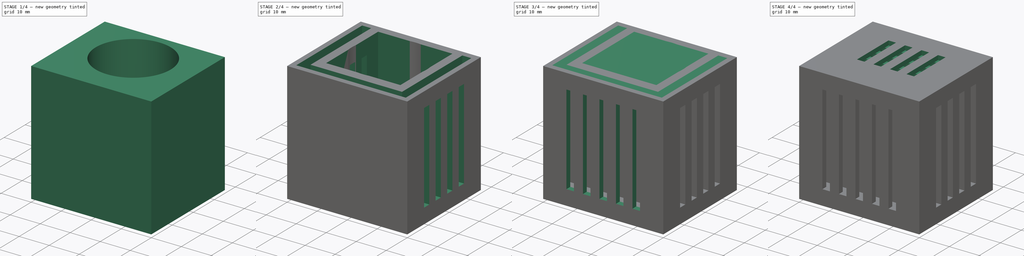
[diagram: build sequence overview — one tinted view per stage of 4, left to right]
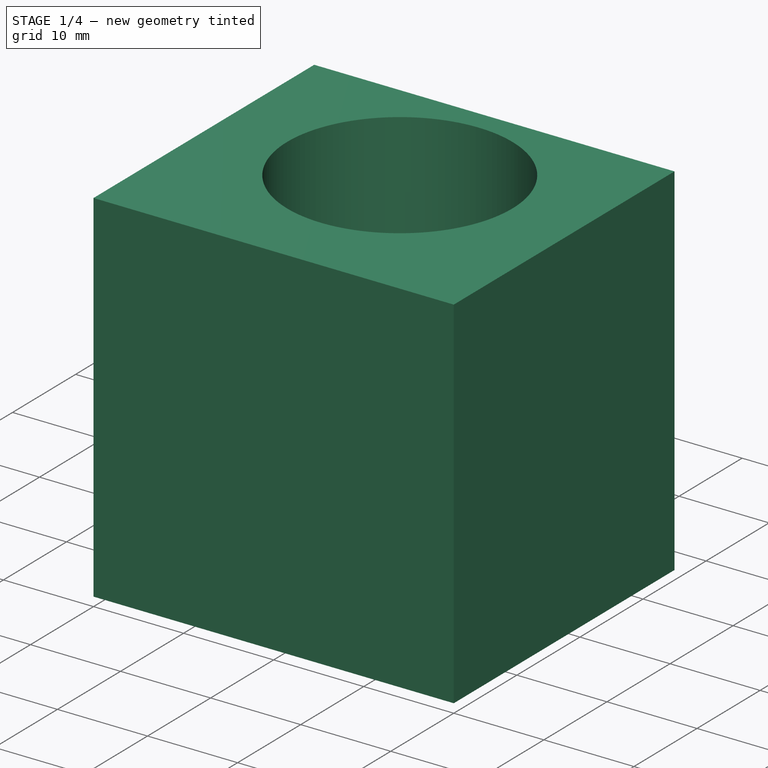
[diagram: stage 1 of 4 — iso view after this stage's code; geometry added in this stage tinted green]
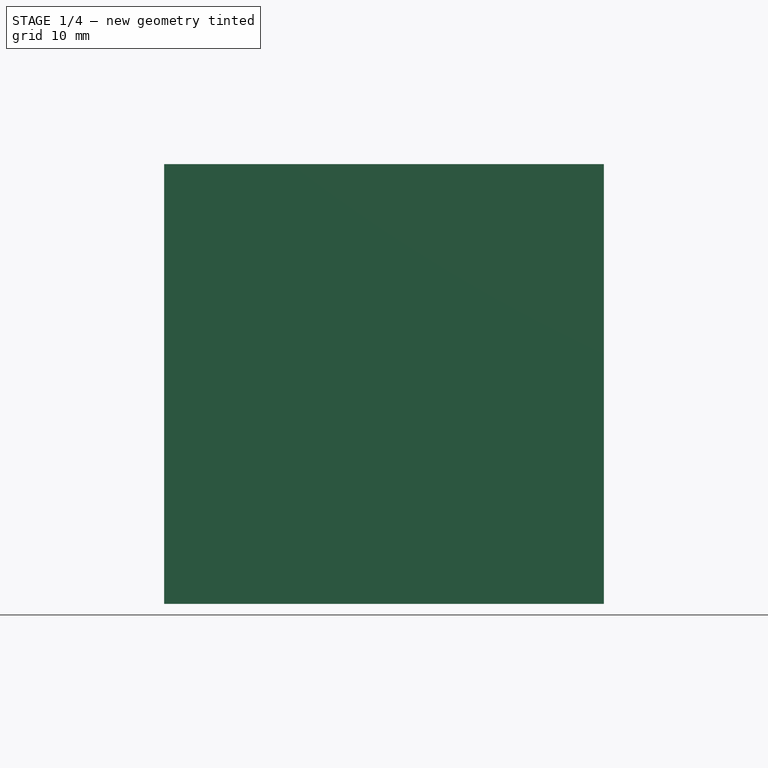
[diagram: stage 1 of 4 — front view after this stage's code; geometry added in this stage tinted green]
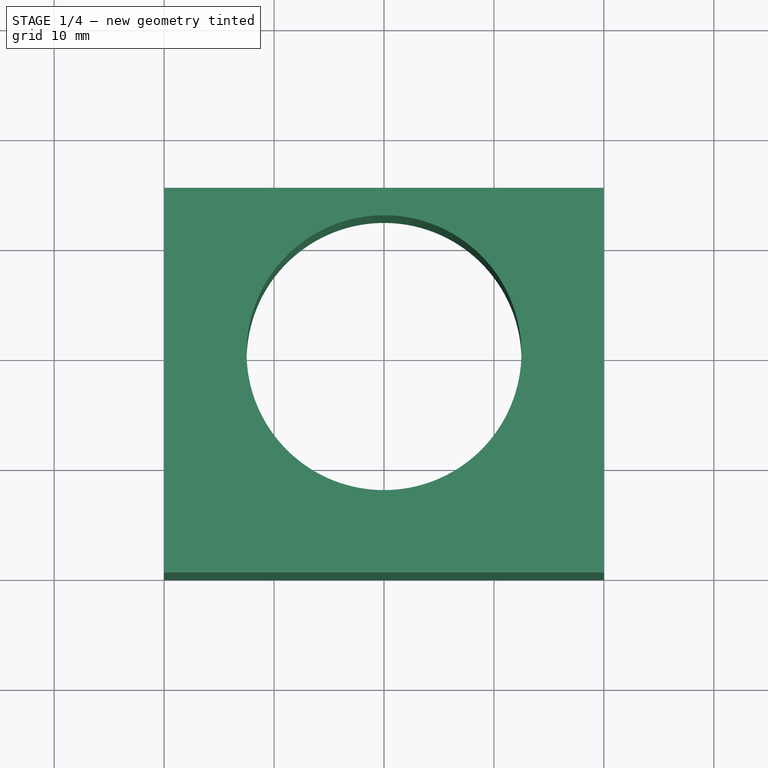
[diagram: stage 1 of 4 — top view after this stage's code; geometry added in this stage tinted green]
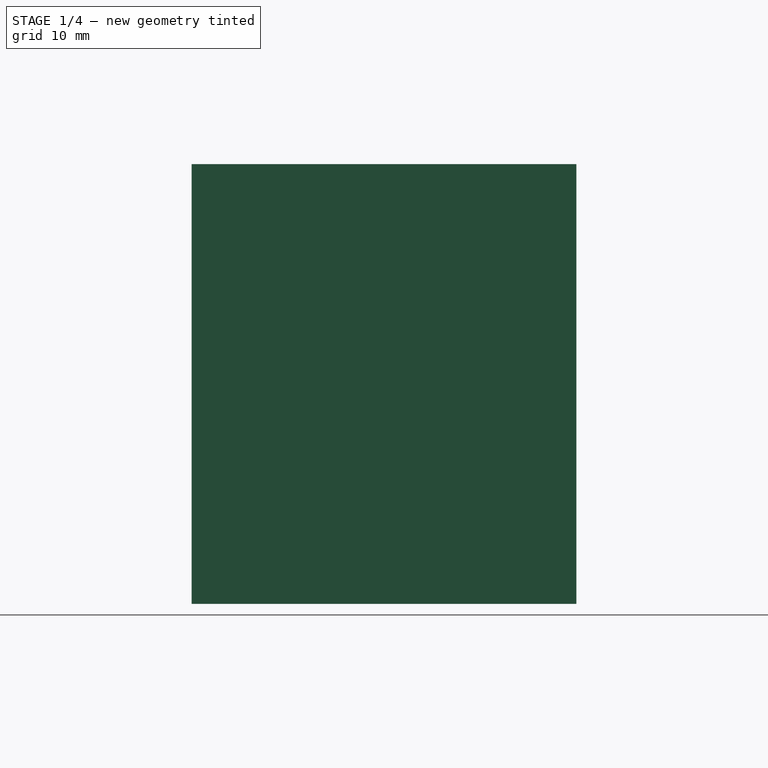
[diagram: stage 1 of 4 — right view after this stage's code; geometry added in this stage tinted green]
FCSTD DOCUMENT  (FreeCAD 0.19R)
Label: FishStrainer
License: All rights reserved
LicenseURL: http://en.wikipedia.org/wiki/All_rights_reserved
objects: Sketcher::SketchObject×10, PartDesign::Pocket×8, PartDesign::Pad×2, PartDesign::Body×1
note: 31 computed .brp shape members not serialized (recipe doc carries the construction recipe); baked Part::Feature solids carry a one-line shape summary decoded from their .brp

FEATURE [Sketcher::SketchObject] Sketch
  FullyConstrained = true
  MapMode = 5
  Support = -> [XY_Plane]
  sketch-geometry (4):
    g0: LineSegment StartX=-20 StartY=15 StartZ=0 EndX=20 EndY=15 EndZ=0
    g1: LineSegment StartX=20 StartY=15 StartZ=0 EndX=20 EndY=-20 EndZ=0
    g2: LineSegment StartX=20 StartY=-20 StartZ=0 EndX=-20 EndY=-20 EndZ=0
    g3: LineSegment StartX=-20 StartY=-20 StartZ=0 EndX=-20 EndY=15 EndZ=0
  constraints (11):
    c: Coincident(g0,g1)
    c: Coincident(g1,g2)
    c: Coincident(g2,g3)
    c: Coincident(g3,g0)
    c: Horizontal(g2)
    c: Vertical(g1)
    c: Vertical(g3)
    c: Distance(g0) = 40
    c: Symmetric(g0,g0,g-2)
    c: DistanceY(g0) = 15
    c: Distance(g1) = 35
FEATURE [PartDesign::Pad] Pad
  Direction = (1,1,1)
  Length = 40
  Length2 = 100
  Profile = -> Sketch
  Type = 0
FEATURE [Sketcher::SketchObject] Sketch001
  FullyConstrained = true
  MapMode = 5
  Placement = pos=(0,0,0) rot=(1,0,0;3.14159rad)
  Support = -> [Pad]
  sketch-geometry (1):
    g0: Circle CenterX=0 CenterY=0 CenterZ=0 NormalX=0 NormalY=0 NormalZ=1 AngleXU=0 Radius=12.5
  constraints (2):
    c: Coincident(g0,g-1)
    c: Diameter(g0) = 25
FEATURE [PartDesign::Pocket] Pocket
  BaseFeature = -> Pad
  Length = 5
  Length2 = 100
  Profile = -> Sketch001
  Type = 1
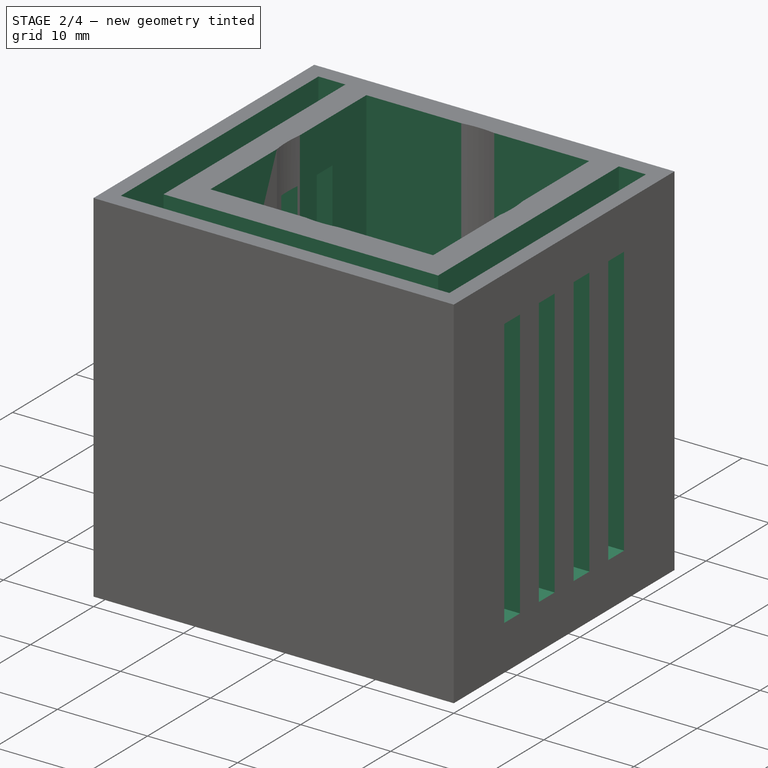
[diagram: stage 2 of 4 — iso view after this stage's code; geometry added in this stage tinted green]
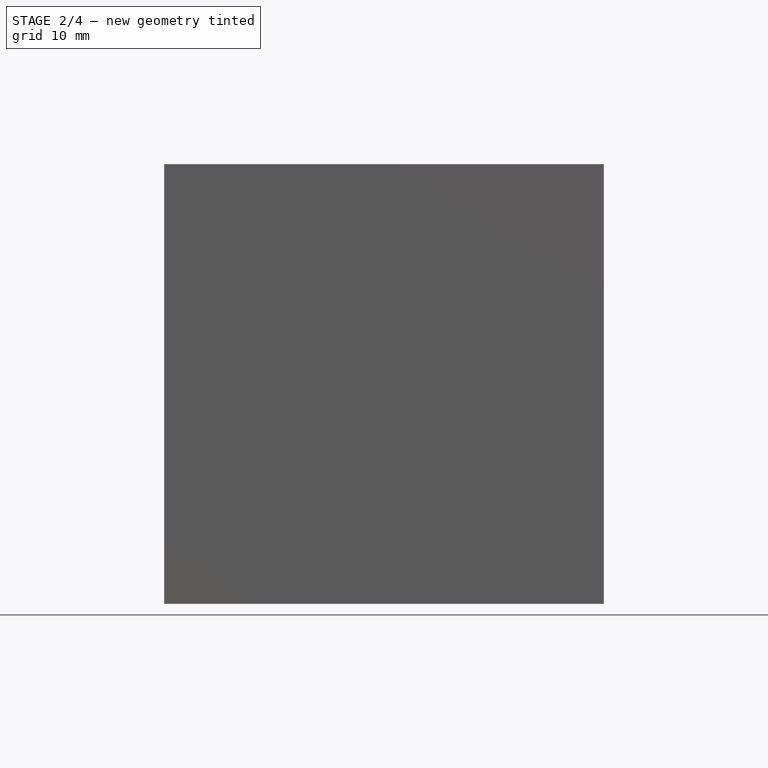
[diagram: stage 2 of 4 — front view after this stage's code; geometry added in this stage tinted green]
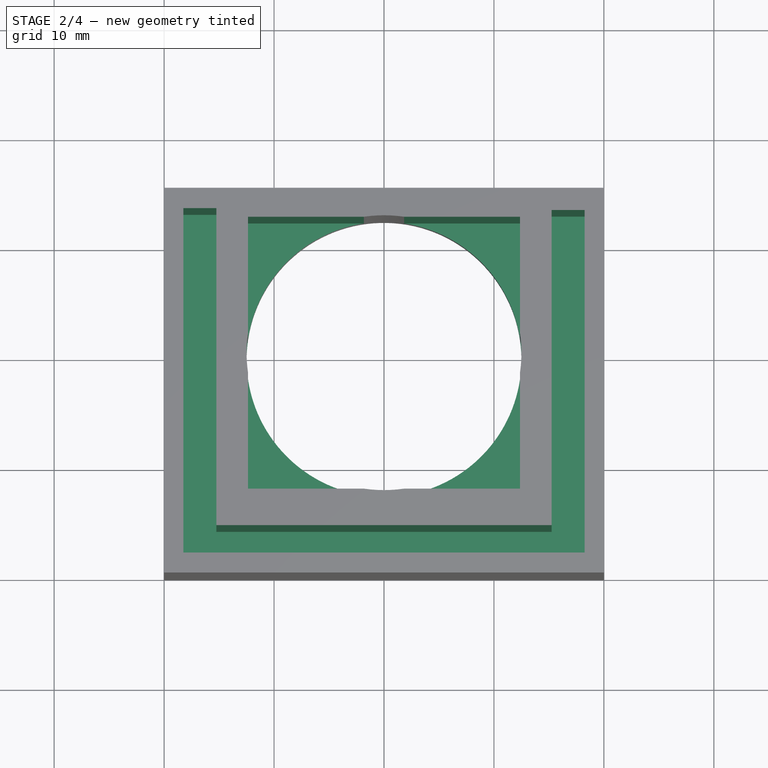
[diagram: stage 2 of 4 — top view after this stage's code; geometry added in this stage tinted green]
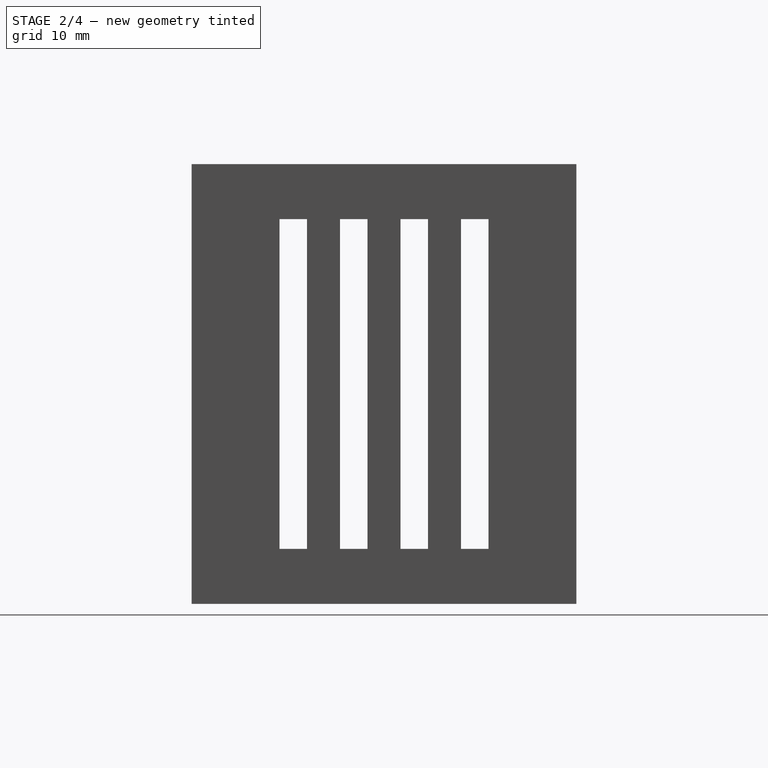
[diagram: stage 2 of 4 — right view after this stage's code; geometry added in this stage tinted green]
FEATURE [Sketcher::SketchObject] Sketch002
  FullyConstrained = false
  MapMode = 5
  Placement = pos=(0,0,40) rot=(0,0,1;0rad)
  Support = -> [Pocket]
  sketch-geometry (4):
    g0: LineSegment StartX=-12.3659 StartY=12.3659 StartZ=0 EndX=12.3659 EndY=12.3659 EndZ=0
    g1: LineSegment StartX=12.3659 StartY=12.3659 StartZ=0 EndX=12.3659 EndY=-12.3659 EndZ=0
    g2: LineSegment StartX=12.3659 StartY=-12.3659 StartZ=0 EndX=-12.3659 EndY=-12.3659 EndZ=0
    g3: LineSegment StartX=-12.3659 StartY=-12.3659 StartZ=0 EndX=-12.3659 EndY=12.3659 EndZ=0
  constraints (10):
    c: Coincident(g0,g1)
    c: Coincident(g1,g2)
    c: Coincident(g2,g3)
    c: Coincident(g3,g0)
    c: Horizontal(g0)
    c: Horizontal(g2)
    c: Vertical(g1)
    c: Vertical(g3)
    c: Equal(g0,g1)
    c: Symmetric(g0,g2,g-1)
FEATURE [Sketcher::SketchObject] Sketch003
  FullyConstrained = false
  MapMode = 5
  Placement = pos=(0,0,40) rot=(0,0,1;0rad)
  sketch-geometry (8):
    g0: LineSegment StartX=-18.2414 StartY=13.1494 StartZ=0 EndX=-15.2414 EndY=13.1494 EndZ=0
    g1: LineSegment StartX=-15.2414 StartY=13.1494 StartZ=0 EndX=-15.2414 EndY=-15.6886 EndZ=0
    g2: LineSegment StartX=-15.2414 StartY=-15.6886 StartZ=0 EndX=15.2414 EndY=-15.6886 EndZ=0
    g3: LineSegment StartX=15.2414 StartY=-15.6886 StartZ=0 EndX=15.2414 EndY=12.9816 EndZ=0
    g4: LineSegment StartX=15.2414 StartY=12.9816 StartZ=0 EndX=18.2414 EndY=12.9816 EndZ=0
    g5: LineSegment StartX=18.2414 StartY=12.9816 StartZ=0 EndX=18.2414 EndY=-18.1805 EndZ=0
    g6: LineSegment StartX=18.2414 StartY=-18.1805 StartZ=0 EndX=-18.2414 EndY=-18.1805 EndZ=0
    g7: LineSegment StartX=-18.2414 StartY=-18.1805 StartZ=0 EndX=-18.2414 EndY=13.1494 EndZ=0
  constraints (18):
    c: Coincident(g0,g1)
    c: Vertical(g1)
    c: Coincident(g1,g2)
    c: Horizontal(g2)
    c: Coincident(g2,g3)
    c: Vertical(g3)
    c: Coincident(g3,g4)
    c: Coincident(g4,g5)
    c: Vertical(g5)
    c: Coincident(g5,g6)
    c: Coincident(g6,g7)
    c: Coincident(g7,g0)
    c: Vertical(g7)
    c: Horizontal(g0)
    c: Horizontal(g4)
    c: Distance(g0) = 3
    c: Distance(g4) = 3
    c: Symmetric(g5,g6,g-2)
FEATURE [Sketcher::SketchObject] Sketch004
  FullyConstrained = false
  MapMode = 5
  Placement = pos=(20,0,0) rot=(0.57735,0.57735,0.57735;2.0944rad)
  sketch-geometry (17):
    g0: LineSegment StartX=-12 StartY=35 StartZ=0 EndX=-9.5 EndY=35 EndZ=0
    g1: LineSegment StartX=-9.5 StartY=35 StartZ=0 EndX=-9.5 EndY=5 EndZ=0
    g2: LineSegment StartX=-9.5 StartY=5 StartZ=0 EndX=-12 EndY=5 EndZ=0
    g3: LineSegment StartX=-12 StartY=5 StartZ=0 EndX=-12 EndY=35 EndZ=0
    g4: LineSegment StartX=-4 StartY=35 StartZ=0 EndX=-6.5 EndY=35 EndZ=0
    g5: LineSegment StartX=-6.5 StartY=35 StartZ=0 EndX=-6.5 EndY=5 EndZ=0
    g6: LineSegment StartX=-6.5 StartY=5 StartZ=0 EndX=-4 EndY=5 EndZ=0
    g7: LineSegment StartX=-4 StartY=5 StartZ=0 EndX=-4 EndY=35 EndZ=0
    g8: LineSegment StartX=-1 StartY=35 StartZ=0 EndX=1.5 EndY=35 EndZ=0
    g9: LineSegment StartX=1.5 StartY=35 StartZ=0 EndX=1.5 EndY=5 EndZ=0
    g10: LineSegment StartX=1.5 StartY=5 StartZ=0 EndX=-1 EndY=5 EndZ=0
    g11: LineSegment StartX=-1 StartY=5 StartZ=0 EndX=-1 EndY=35 EndZ=0
    g12: LineSegment StartX=-2.5 StartY=45.4487 StartZ=0 EndX=-2.5 EndY=-15.0992 EndZ=0
    g13: LineSegment StartX=4.5 StartY=35 StartZ=0 EndX=7 EndY=35 EndZ=0
    g14: LineSegment StartX=7 StartY=35 StartZ=0 EndX=7 EndY=5 EndZ=0
    g15: LineSegment StartX=7 StartY=5 StartZ=0 EndX=4.5 EndY=5 EndZ=0
    g16: LineSegment StartX=4.5 StartY=5 StartZ=0 EndX=4.5 EndY=35 EndZ=0
  constraints (46):
    c: Coincident(g0,g1)
    c: Coincident(g1,g2)
    c: Coincident(g2,g3)
    c: Coincident(g3,g0)
    c: Horizontal(g0)
    c: Horizontal(g2)
    c: Vertical(g1)
    c: Vertical(g3)
    c: Coincident(g4,g5)
    c: Coincident(g5,g6)
    c: Coincident(g6,g7)
    c: Coincident(g7,g4)
    c: Horizontal(g4)
    c: Horizontal(g6)
    c: Vertical(g5)
    c: Vertical(g7)
    c: Coincident(g8,g9)
    c: Coincident(g9,g10)
    c: Coincident(g10,g11)
    c: Coincident(g11,g8)
    c: Horizontal(g8)
    c: Horizontal(g10)
    c: Vertical(g9)
    c: Vertical(g11)
    c: Equal(g0,g4)
    c: Equal(g4,g8)
    c: Coincident(g13,g14)
    c: Coincident(g14,g15)
    c: Coincident(g15,g16)
    c: Coincident(g16,g13)
    c: Horizontal(g13)
    c: Horizontal(g15)
    c: Vertical(g14)
    c: Vertical(g16)
    c: Equal(g13,g8)
    c: Distance(g0) = 2.5
    c: Symmetric(g13,g0,g12)
    c: DistanceY(g0,g4) = 0
    c: DistanceY(g1,g5) = 0
    c: Equal(g5,g11)
    c: Equal(g11,g16)
    c: Symmetric(g8,g4,g12)
    c: Distance(g4,g0) = 3
    c: Distance(g4,g8) = 3
    c: DistanceY(g14) = 5
    c: DistanceY(g13) = 35
FEATURE [Sketcher::SketchObject] Sketch005
  FullyConstrained = true
  MapMode = 5
  Placement = pos=(0,-20,0) rot=(1,0,0;1.5708rad)
  sketch-geometry (20):
    g0: LineSegment StartX=-6.75 StartY=35 StartZ=0 EndX=-4.25 EndY=35 EndZ=0
    g1: LineSegment StartX=-4.25 StartY=35 StartZ=0 EndX=-4.25 EndY=5 EndZ=0
    g2: LineSegment StartX=-4.25 StartY=5 StartZ=0 EndX=-6.75 EndY=5 EndZ=0
    g3: LineSegment StartX=-6.75 StartY=5 StartZ=0 EndX=-6.75 EndY=35 EndZ=0
    g4: LineSegment StartX=-1.25 StartY=35 StartZ=0 EndX=1.25 EndY=35 EndZ=0
    g5: LineSegment StartX=1.25 StartY=35 StartZ=0 EndX=1.25 EndY=5 EndZ=0
    g6: LineSegment StartX=1.25 StartY=5 StartZ=0 EndX=-1.25 EndY=5 EndZ=0
    g7: LineSegment StartX=-1.25 StartY=5 StartZ=0 EndX=-1.25 EndY=35 EndZ=0
    g8: LineSegment StartX=4.25 StartY=35 StartZ=0 EndX=6.75 EndY=35 EndZ=0
    g9: LineSegment StartX=6.75 StartY=35 StartZ=0 EndX=6.75 EndY=5 EndZ=0
    g10: LineSegment StartX=6.75 StartY=5 StartZ=0 EndX=4.25 EndY=5 EndZ=0
    g11: LineSegment StartX=4.25 StartY=5 StartZ=0 EndX=4.25 EndY=35 EndZ=0
    g12: LineSegment StartX=9.75 StartY=35 StartZ=0 EndX=12.25 EndY=35 EndZ=0
    g13: LineSegment StartX=12.25 StartY=35 StartZ=0 EndX=12.25 EndY=5 EndZ=0
    g14: LineSegment StartX=12.25 StartY=5 StartZ=0 EndX=9.75 EndY=5 EndZ=0
    g15: LineSegment StartX=9.75 StartY=5 StartZ=0 EndX=9.75 EndY=35 EndZ=0
    g16: LineSegment StartX=-12.25 StartY=35 StartZ=0 EndX=-9.75 EndY=35 EndZ=0
    g17: LineSegment StartX=-9.75 StartY=35 StartZ=0 EndX=-9.75 EndY=5 EndZ=0
    g18: LineSegment StartX=-9.75 StartY=5 StartZ=0 EndX=-12.25 EndY=5 EndZ=0
    g19: LineSegment StartX=-12.25 StartY=5 StartZ=0 EndX=-12.25 EndY=35 EndZ=0
  constraints (57):
    c: Coincident(g0,g1)
    c: Coincident(g1,g2)
    c: Coincident(g2,g3)
    c: Coincident(g3,g0)
    c: Horizontal(g0)
    c: Horizontal(g2)
    c: Vertical(g1)
    c: Vertical(g3)
    c: Coincident(g4,g5)
    c: Coincident(g5,g6)
    c: Coincident(g6,g7)
    c: Coincident(g7,g4)
    c: Horizontal(g6)
    c: Vertical(g5)
    c: Vertical(g7)
    c: Coincident(g8,g9)
    c: Coincident(g9,g10)
    c: Coincident(g10,g11)
    c: Coincident(g11,g8)
    c: Horizontal(g8)
    c: Horizontal(g10)
    c: Vertical(g9)
    c: Vertical(g11)
    c: Symmetric(g0,g8,g-2)
    c: Symmetric(g4,g4,g-2)
    c: Equal(g0,g4)
    c: Equal(g4,g8)
    c: Distance(g2) = 2.5
    c: Distance(g4,g1) = 3
    c: DistanceY(g10,g5) = 0
    c: DistanceY(g1,g6) = 0
    c: Equal(g11,g7)
    c: Distance(g9) = 30
    c: DistanceY(g9) = 5
    c: Coincident(g12,g13)
    c: Coincident(g13,g14)
    c: Coincident(g14,g15)
    c: Coincident(g15,g12)
    c: Horizontal(g12)
    c: Horizontal(g14)
    c: Vertical(g13)
    c: Vertical(g15)
    c: Coincident(g16,g17)
    c: Coincident(g17,g18)
    c: Coincident(g18,g19)
    c: Coincident(g19,g16)
    c: Horizontal(g16)
    c: Horizontal(g18)
    c: Vertical(g17)
    c: Vertical(g19)
    c: DistanceY(g0,g16) = 0
    c: Equal(g15,g17)
    c: Equal(g17,g3)
    c: Equal(g12,g18)
    c: Equal(g18,g2)
    c: Symmetric(g12,g16,g-2)
    c: Distance(g16,g3) = 3
FEATURE [Sketcher::SketchObject] Sketch006
  FullyConstrained = false
  MapMode = 5
  Placement = pos=(0,0,40) rot=(0,0,1;0rad)
  sketch-geometry (4):
    g0: LineSegment StartX=-19.5635 StartY=14.3694 StartZ=0 EndX=19.5805 EndY=14.3694 EndZ=0
    g1: LineSegment StartX=19.5805 StartY=14.3694 StartZ=0 EndX=19.5805 EndY=-19.6162 EndZ=0
    g2: LineSegment StartX=19.5805 StartY=-19.6162 StartZ=0 EndX=-19.5635 EndY=-19.6162 EndZ=0
    g3: LineSegment StartX=-19.5635 StartY=-19.6162 StartZ=0 EndX=-19.5635 EndY=14.3694 EndZ=0
  constraints (8):
    c: Coincident(g0,g1)
    c: Coincident(g1,g2)
    c: Coincident(g2,g3)
    c: Coincident(g3,g0)
    c: Horizontal(g0)
    c: Horizontal(g2)
    c: Vertical(g1)
    c: Vertical(g3)
FEATURE [PartDesign::Pocket] Pocket001
  BaseFeature = -> Pocket
  Length = 35
  Length2 = 100
  Profile = -> Sketch002
  Type = 0
FEATURE [PartDesign::Pocket] Pocket002
  BaseFeature = -> Pocket001
  Length = 35
  Length2 = 100
  Profile = -> Sketch003
  Type = 0
FEATURE [PartDesign::Pocket] Pocket003
  BaseFeature = -> Pocket002
  Length = 5
  Length2 = 100
  Profile = -> Sketch004
  Type = 1
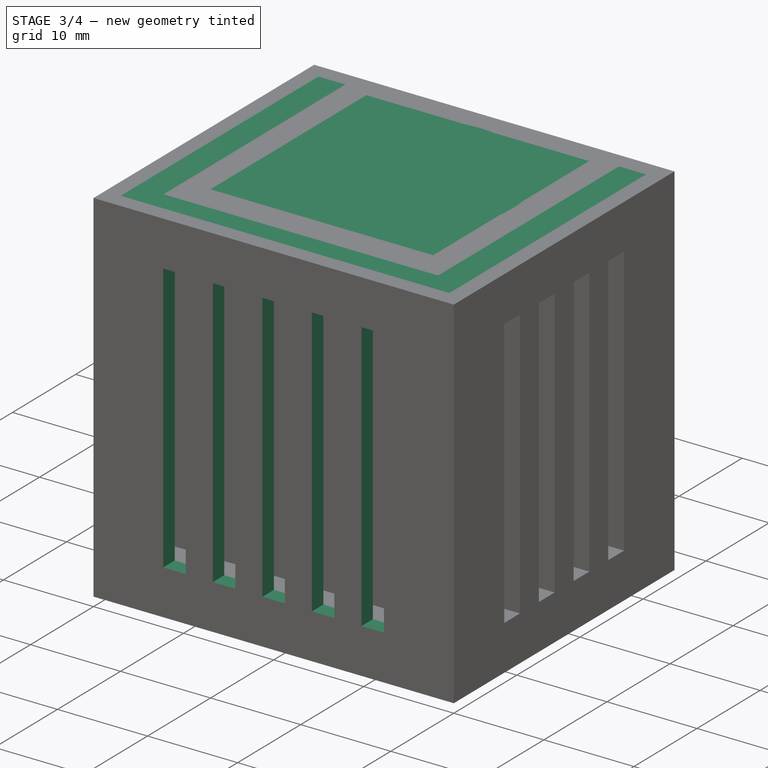
[diagram: stage 3 of 4 — iso view after this stage's code; geometry added in this stage tinted green]
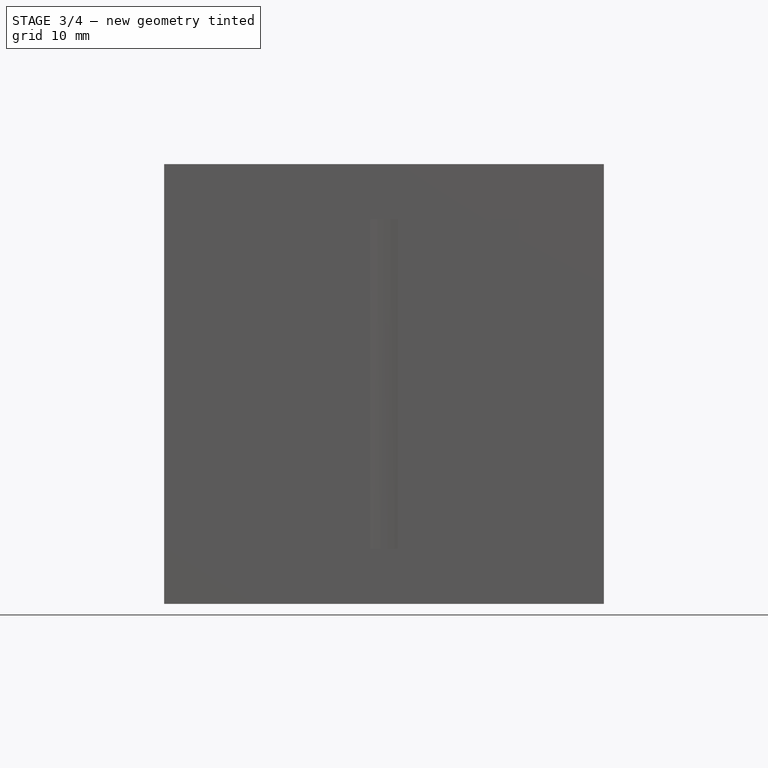
[diagram: stage 3 of 4 — front view after this stage's code; geometry added in this stage tinted green]
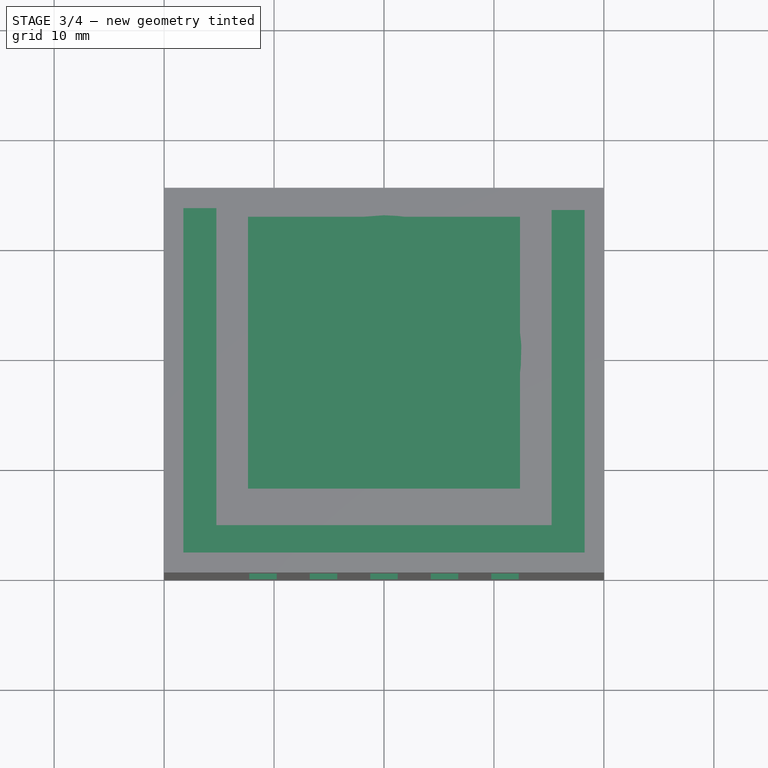
[diagram: stage 3 of 4 — top view after this stage's code; geometry added in this stage tinted green]
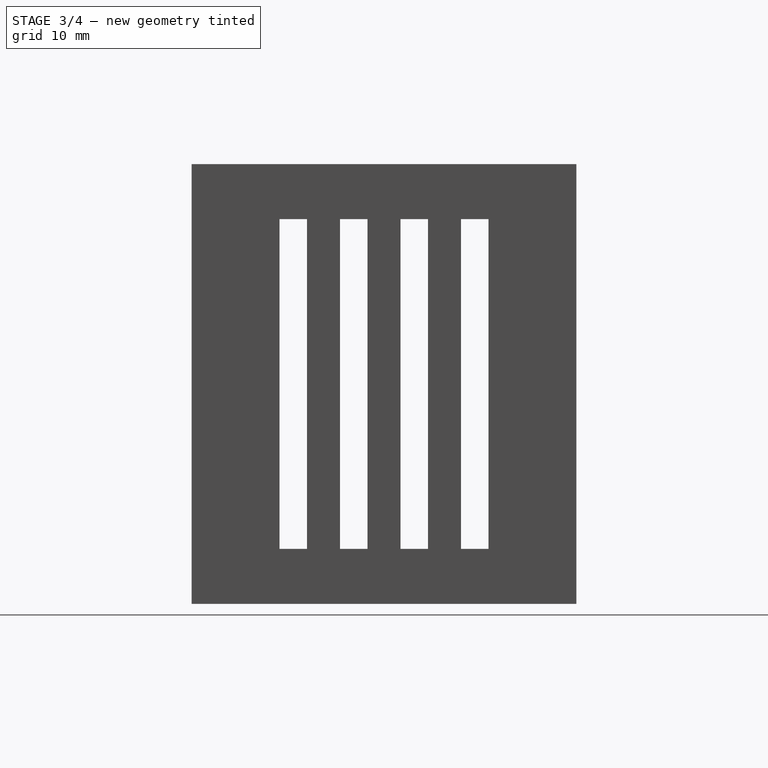
[diagram: stage 3 of 4 — right view after this stage's code; geometry added in this stage tinted green]
FEATURE [PartDesign::Pocket] Pocket004
  BaseFeature = -> Pocket003
  Length = 21
  Length2 = 100
  Profile = -> Sketch005
  Type = 0
FEATURE [PartDesign::Pad] Pad001
  BaseFeature = -> Pocket004
  Direction = (1,1,1)
  Length = 3
  Length2 = 100
  Profile = -> Sketch006
  Reversed = true
  Type = 0
FEATURE [Sketcher::SketchObject] Sketch007
  FullyConstrained = false
  MapMode = 5
  Placement = pos=(0,0,5) rot=(0,0,1;0rad)
  Support = -> [Pad001]
  sketch-geometry (12):
    g0: LineSegment StartX=-9 StartY=6.02282 StartZ=0 EndX=9 EndY=6.02282 EndZ=0
    g1: LineSegment StartX=9 StartY=6.02282 StartZ=0 EndX=9 EndY=4.02282 EndZ=0
    g2: LineSegment StartX=9 StartY=4.02282 StartZ=0 EndX=-9 EndY=4.02282 EndZ=0
    g3: LineSegment StartX=-9 StartY=4.02282 StartZ=0 EndX=-9 EndY=6.02282 EndZ=0
    g4: LineSegment StartX=-9 StartY=1 StartZ=0 EndX=9 EndY=1 EndZ=0
    g5: LineSegment StartX=9 StartY=1 StartZ=0 EndX=9 EndY=-1 EndZ=0
    g6: LineSegment StartX=9 StartY=-1 StartZ=0 EndX=-9 EndY=-1 EndZ=0
    g7: LineSegment StartX=-9 StartY=-1 StartZ=0 EndX=-9 EndY=1 EndZ=0
    g8: LineSegment StartX=-9 StartY=-4.02282 StartZ=0 EndX=9 EndY=-4.02282 EndZ=0
    g9: LineSegment StartX=9 StartY=-4.02282 StartZ=0 EndX=9 EndY=-6.02282 EndZ=0
    g10: LineSegment StartX=9 StartY=-6.02282 StartZ=0 EndX=-9 EndY=-6.02282 EndZ=0
    g11: LineSegment StartX=-9 StartY=-6.02282 StartZ=0 EndX=-9 EndY=-4.02282 EndZ=0
  constraints (31):
    c: Coincident(g0,g1)
    c: Coincident(g1,g2)
    c: Coincident(g2,g3)
    c: Coincident(g3,g0)
    c: Horizontal(g2)
    c: Vertical(g1)
    c: Vertical(g3)
    c: Coincident(g4,g5)
    c: Coincident(g5,g6)
    c: Coincident(g6,g7)
    c: Coincident(g7,g4)
    c: Horizontal(g4)
    c: Horizontal(g6)
    c: Vertical(g7)
    c: Coincident(g8,g9)
    c: Coincident(g9,g10)
    c: Coincident(g10,g11)
    c: Coincident(g11,g8)
    c: Horizontal(g8)
    c: Vertical(g9)
    c: Vertical(g11)
    c: Equal(g9,g5)
    c: Equal(g5,g1)
    c: Symmetric(g8,g1,g-1)
    c: Symmetric(g5,g4,g-1)
    c: Distance(g3) = 2
    c: Distance(g8) = 18
    c: Symmetric(g0,g0,g-2)
    c: DistanceX(g1,g4) = 0
    c: Symmetric(g9,g10,g-2)
    c: Equal(g8,g6)
FEATURE [PartDesign::Pocket] Pocket005
  BaseFeature = -> Pad001
  Length = 5
  Length2 = 100
  Profile = -> Sketch007
  Type = 0
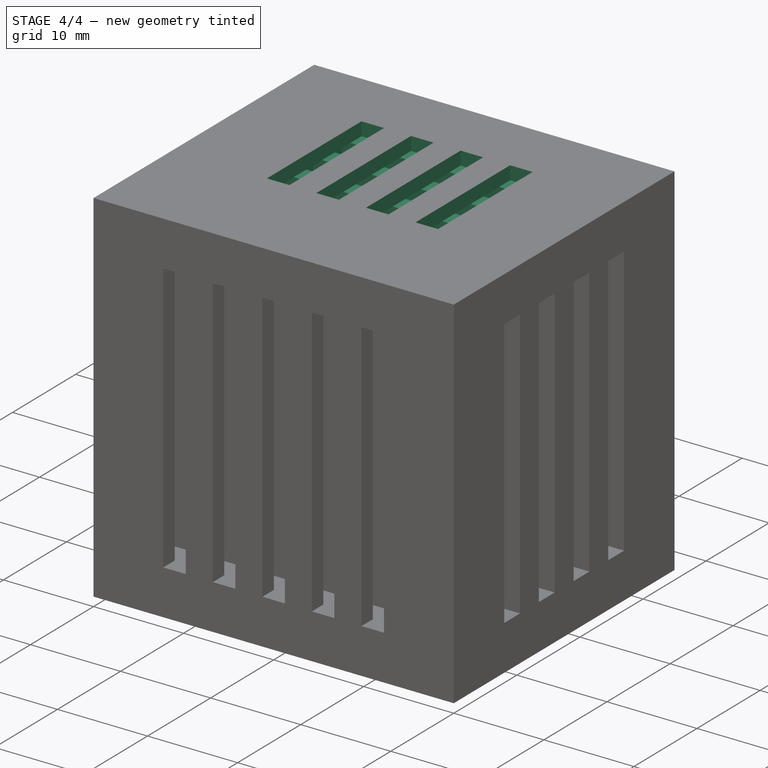
[diagram: stage 4 of 4 — iso view after this stage's code; geometry added in this stage tinted green]
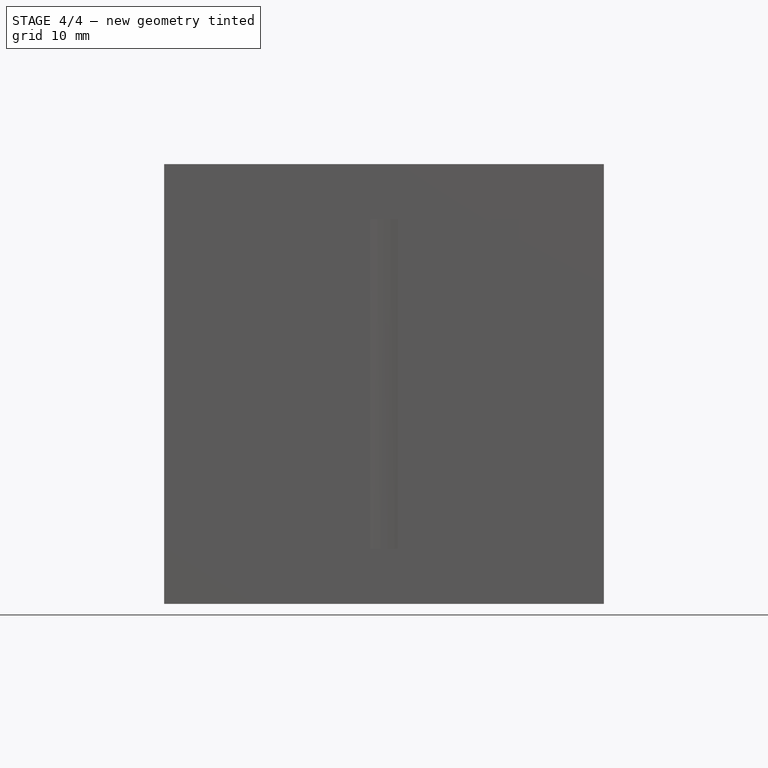
[diagram: stage 4 of 4 — front view after this stage's code; geometry added in this stage tinted green]
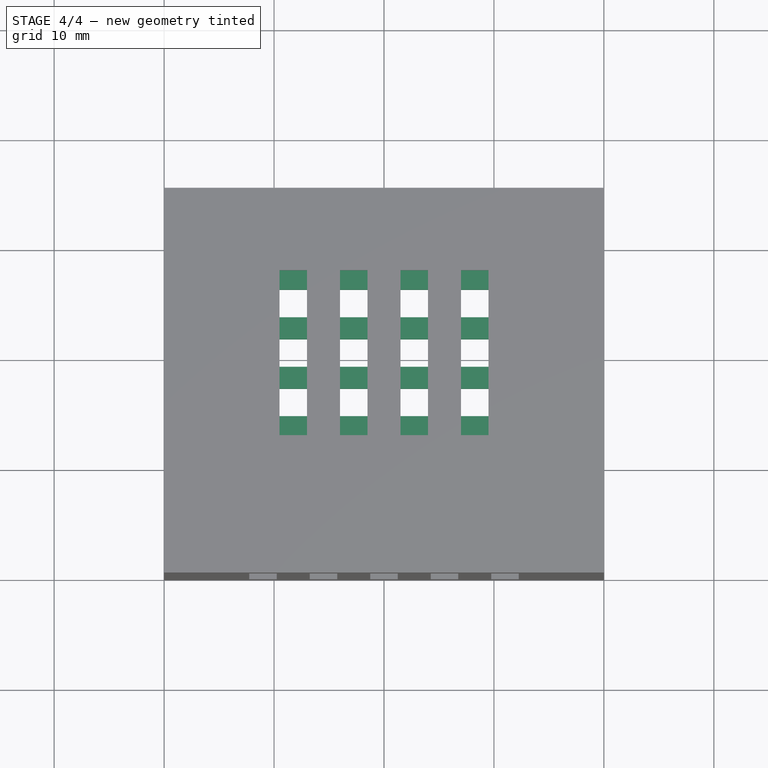
[diagram: stage 4 of 4 — top view after this stage's code; geometry added in this stage tinted green]
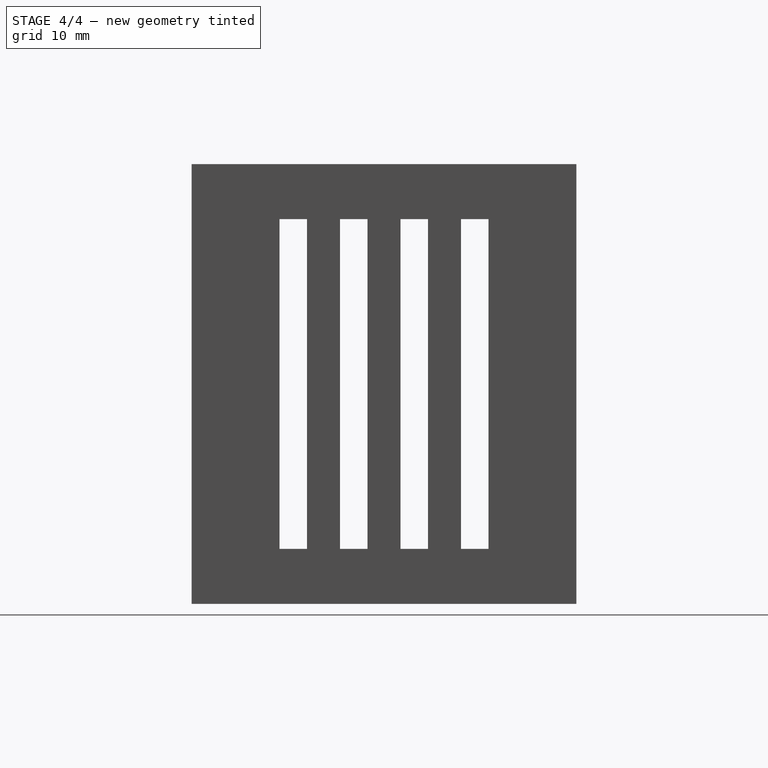
[diagram: stage 4 of 4 — right view after this stage's code; geometry added in this stage tinted green]
FEATURE [Sketcher::SketchObject] Sketch008
  FullyConstrained = true
  MapMode = 5
  Placement = pos=(0,0,40) rot=(0,0,1;0rad)
  Support = -> [Pocket005]
  sketch-geometry (16):
    g0: LineSegment StartX=-9.5 StartY=7.5 StartZ=0 EndX=-7 EndY=7.5 EndZ=0
    g1: LineSegment StartX=-7 StartY=7.5 StartZ=0 EndX=-7 EndY=-7.5 EndZ=0
    g2: LineSegment StartX=-7 StartY=-7.5 StartZ=0 EndX=-9.5 EndY=-7.5 EndZ=0
    g3: LineSegment StartX=-9.5 StartY=-7.5 StartZ=0 EndX=-9.5 EndY=7.5 EndZ=0
    g4: LineSegment StartX=7 StartY=7.5 StartZ=0 EndX=9.5 EndY=7.5 EndZ=0
    g5: LineSegment StartX=9.5 StartY=7.5 StartZ=0 EndX=9.5 EndY=-7.5 EndZ=0
    g6: LineSegment StartX=9.5 StartY=-7.5 StartZ=0 EndX=7 EndY=-7.5 EndZ=0
    g7: LineSegment StartX=7 StartY=-7.5 StartZ=0 EndX=7 EndY=7.5 EndZ=0
    g8: LineSegment StartX=-4 StartY=7.5 StartZ=0 EndX=-1.5 EndY=7.5 EndZ=0
    g9: LineSegment StartX=-1.5 StartY=7.5 StartZ=0 EndX=-1.5 EndY=-7.5 EndZ=0
    g10: LineSegment StartX=-1.5 StartY=-7.5 StartZ=0 EndX=-4 EndY=-7.5 EndZ=0
    g11: LineSegment StartX=-4 StartY=-7.5 StartZ=0 EndX=-4 EndY=7.5 EndZ=0
    g12: LineSegment StartX=1.5 StartY=7.5 StartZ=0 EndX=4 EndY=7.5 EndZ=0
    g13: LineSegment StartX=4 StartY=7.5 StartZ=0 EndX=4 EndY=-7.5 EndZ=0
    g14: LineSegment StartX=4 StartY=-7.5 StartZ=0 EndX=1.5 EndY=-7.5 EndZ=0
    g15: LineSegment StartX=1.5 StartY=-7.5 StartZ=0 EndX=1.5 EndY=7.5 EndZ=0
  constraints (45):
    c: Coincident(g0,g1)
    c: Coincident(g1,g2)
    c: Coincident(g2,g3)
    c: Coincident(g3,g0)
    c: Horizontal(g0)
    c: Horizontal(g2)
    c: Vertical(g1)
    c: Coincident(g4,g5)
    c: Coincident(g5,g6)
    c: Coincident(g6,g7)
    c: Coincident(g7,g4)
    c: Horizontal(g4)
    c: Horizontal(g6)
    c: Vertical(g5)
    c: Vertical(g7)
    c: Coincident(g8,g9)
    c: Coincident(g9,g10)
    c: Coincident(g10,g11)
    c: Coincident(g11,g8)
    c: Horizontal(g8)
    c: Horizontal(g10)
    c: Vertical(g9)
    c: Vertical(g11)
    c: Coincident(g12,g13)
    c: Coincident(g13,g14)
    c: Coincident(g14,g15)
    c: Coincident(g15,g12)
    c: Horizontal(g12)
    c: Horizontal(g14)
    c: Vertical(g13)
    c: Vertical(g15)
    c: Equal(g0,g8)
    c: Equal(g8,g12)
    c: Equal(g12,g4)
    c: Equal(g5,g13)
    c: Equal(g13,g9)
    c: Equal(g9,g1)
    c: DistanceY(g8,g0) = 0
    c: Distance(g1) = 15
    c: Symmetric(g9,g14,g-2)
    c: Symmetric(g1,g6,g-2)
    c: Distance(g4) = 2.5
    c: Distance(g12,g7) = 3
    c: Distance(g8,g15) = 3
    c: Symmetric(g2,g0,g-1)
FEATURE [PartDesign::Pocket] Pocket006
  BaseFeature = -> Pocket005
  Length = 1.5
  Length2 = 100
  Profile = -> Sketch008
  Type = 0
FEATURE [Sketcher::SketchObject] Sketch009
  FullyConstrained = false
  MapMode = 5
  Placement = pos=(0,0,37) rot=(1,0,0;3.14159rad)
  Support = -> [Pocket006]
  sketch-geometry (13):
    g0: LineSegment StartX=-10.5 StartY=5.75 StartZ=0 EndX=10.5 EndY=5.75 EndZ=0
    g1: LineSegment StartX=10.5 StartY=5.75 StartZ=0 EndX=10.5 EndY=3.25 EndZ=0
    g2: LineSegment StartX=10.5 StartY=3.25 StartZ=0 EndX=-10.5 EndY=3.25 EndZ=0
    g3: LineSegment StartX=-10.5 StartY=3.25 StartZ=0 EndX=-10.5 EndY=5.75 EndZ=0
    g4: LineSegment StartX=-10.5 StartY=1.25 StartZ=0 EndX=10.5 EndY=1.25 EndZ=0
    g5: LineSegment StartX=10.5 StartY=1.25 StartZ=0 EndX=10.5 EndY=-1.25 EndZ=0
    g6: LineSegment StartX=10.5 StartY=-1.25 StartZ=0 EndX=-10.5 EndY=-1.25 EndZ=0
    g7: LineSegment StartX=-10.5 StartY=-1.25 StartZ=0 EndX=-10.5 EndY=1.25 EndZ=0
    g8: LineSegment StartX=-10.5 StartY=-3.25 StartZ=0 EndX=10.5 EndY=-3.25 EndZ=0
    g9: LineSegment StartX=10.5 StartY=-3.25 StartZ=0 EndX=10.5 EndY=-5.75 EndZ=0
    g10: LineSegment StartX=10.5 StartY=-5.75 StartZ=0 EndX=-10.5 EndY=-5.75 EndZ=0
    g11: LineSegment StartX=-10.5 StartY=-5.75 StartZ=0 EndX=-10.5 EndY=-3.25 EndZ=0
    g12: LineSegment StartX=10.5 StartY=11.3998 StartZ=0 EndX=10.5 EndY=-13.1126 EndZ=0
  constraints (36):
    c: Coincident(g0,g1)
    c: Coincident(g1,g2)
    c: Coincident(g2,g3)
    c: Coincident(g3,g0)
    c: Horizontal(g2)
    c: Vertical(g1)
    c: Vertical(g3)
    c: Coincident(g4,g5)
    c: Coincident(g5,g6)
    c: Coincident(g6,g7)
    c: Coincident(g7,g4)
    c: Horizontal(g4)
    c: Horizontal(g6)
    c: Vertical(g7)
    c: Coincident(g8,g9)
    c: Coincident(g9,g10)
    c: Coincident(g10,g11)
    c: Coincident(g11,g8)
    c: Horizontal(g8)
    c: Horizontal(g10)
    c: Vertical(g9)
    c: Vertical(g11)
    c: Equal(g1,g5)
    c: Equal(g5,g9)
    c: Distance(g3) = 2.5
    c: Vertical(g12)
    c: PointOnObject(g0,g12)
    c: PointOnObject(g4,g12)
    c: PointOnObject(g8,g12)
    c: Distance(g4,g2) = 2
    c: Distance(g5,g8) = 2
    c: Symmetric(g5,g4,g-1)
    c: Equal(g0,g4)
    c: Equal(g4,g8)
    c: Symmetric(g0,g0,g-2)
    c: Distance(g4) = 21
FEATURE [PartDesign::Pocket] Pocket007
  BaseFeature = -> Pocket006
  Length = 1.5
  Length2 = 100
  Profile = -> Sketch009
  Type = 0
FEATURE [PartDesign::Body] Body
  Group = -> [Sketch,Pad,Sketch001,Pocket,Sketch002,Sketch003,Sketch004,Sketch005,Sketch006,Sketch007,Pocket001,Pocket002,Pocket003,Pocket004,Pad001,Pocket005,Sketch008,Pocket006,Sketch009,Pocket007]
  Origin = -> Origin
  Tip = -> Pocket007
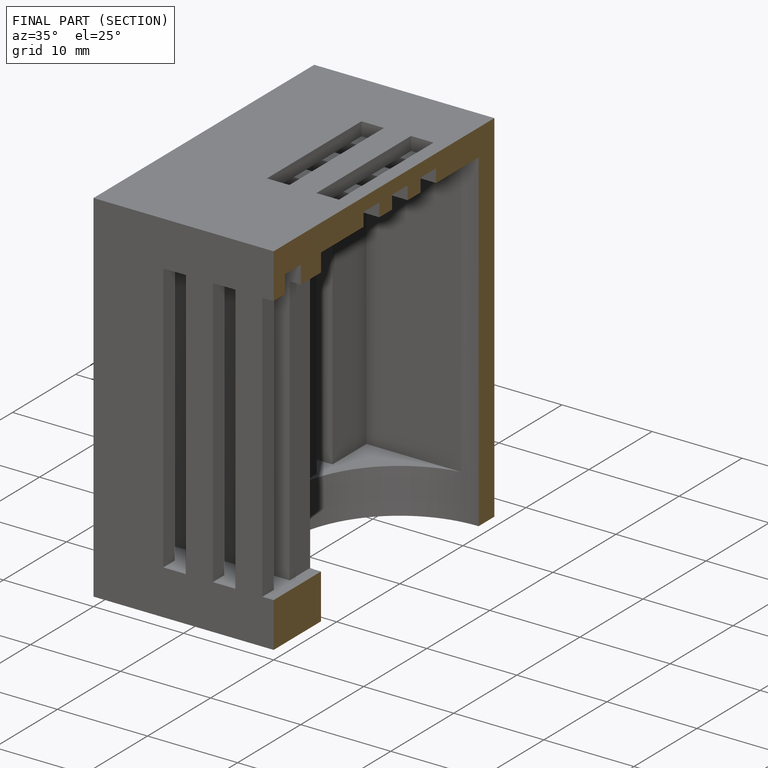
[diagram: finished part — half-section view (interior)]
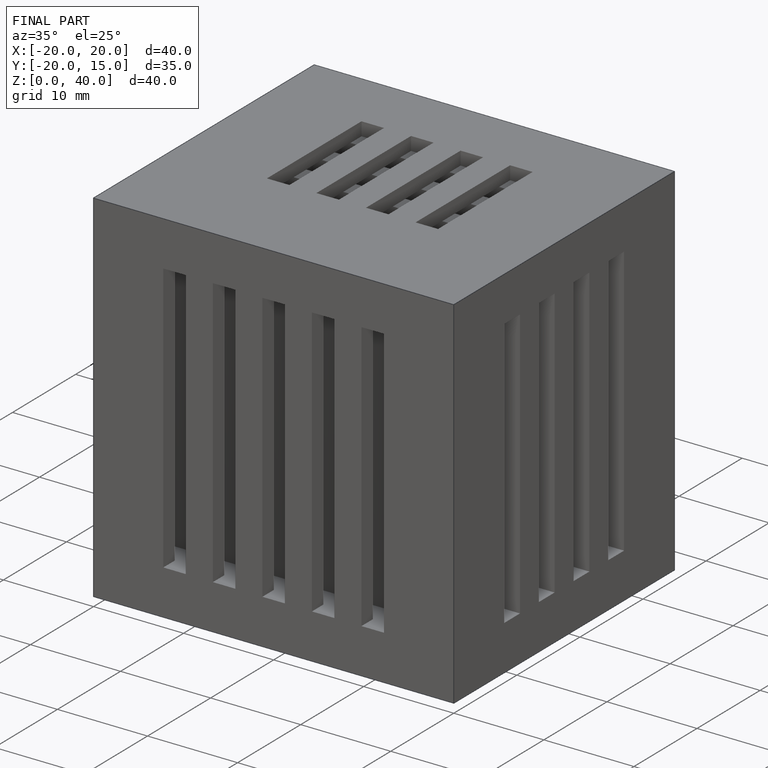
[diagram: finished part — iso view with bounding-box wireframe]
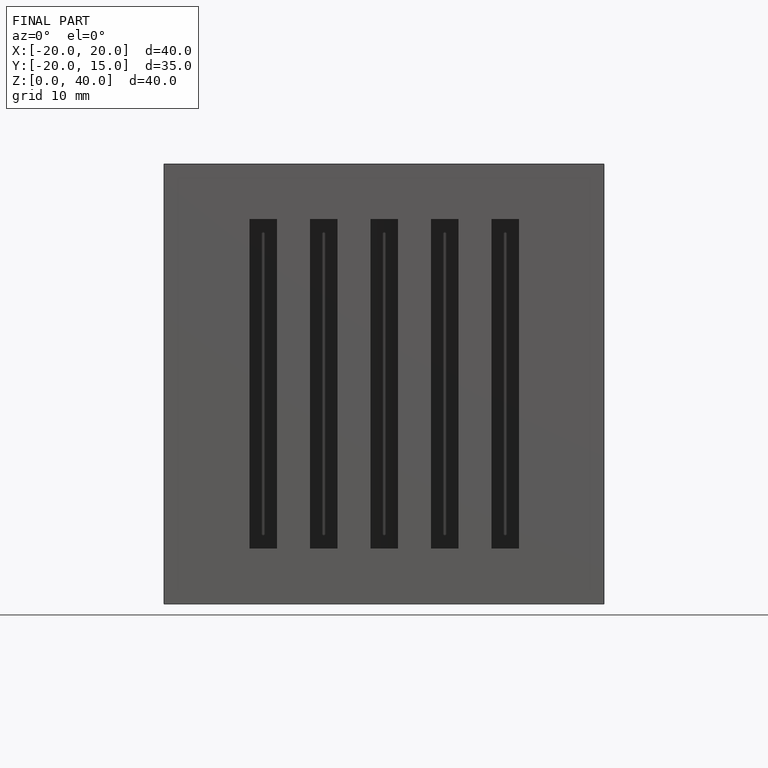
[diagram: finished part — front view with bounding-box wireframe]
